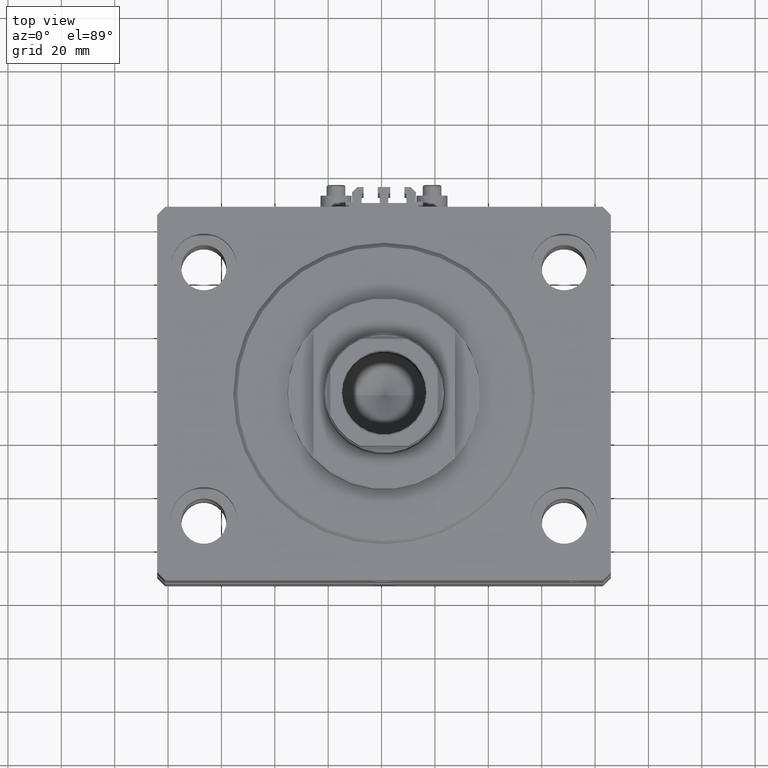
[diagram: clean part render]
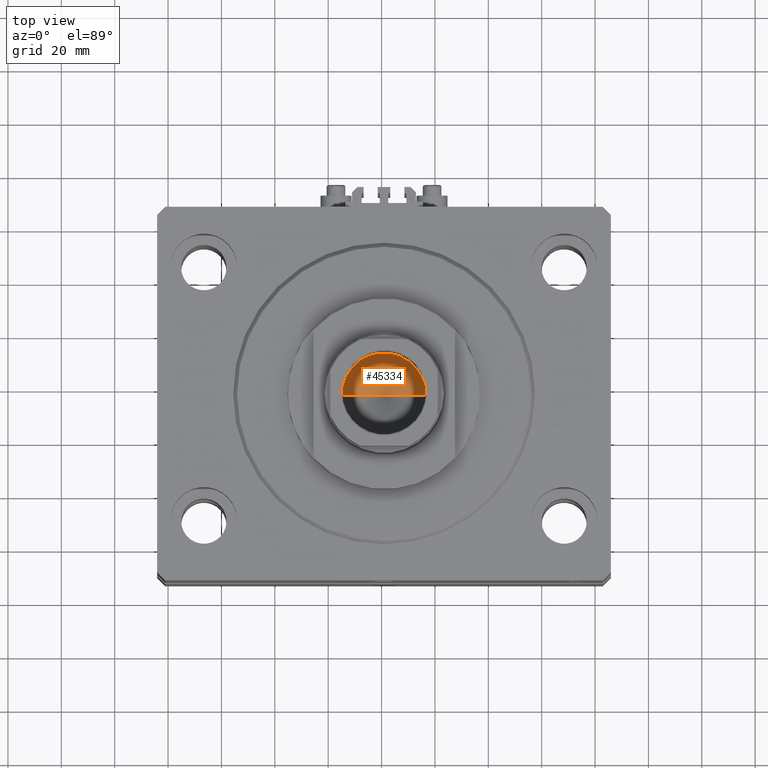
[diagram: same view with one face highlighted and labeled with its STEP entity id]
A machine part, top view. The second image highlights one B-rep face of the part: STEP entity #45334.
In plain terms, the highlighted conical surface has half-angle 59 deg.
Its self-contained STEP definition (entity closure, byte-faithful):
#3615 = FACE_OUTER_BOUND ( 'NONE', #41633, .T. ) ;
#5982 = DIRECTION ( 'NONE',  ( -0.000000000000000000, -0.000000000000000000, 1.000000000000000000 ) ) ;
#6333 = CARTESIAN_POINT ( 'NONE',  ( -15.74999999999998934, 1.928818708657080161E-15, 71.10000000000002274 ) ) ;
#6750 = VERTEX_POINT ( 'NONE', #11647 ) ;
#7201 = LINE ( 'NONE', #26030, #34961 ) ;
#7923 = DIRECTION ( 'NONE',  ( 0.8571673007021118895, 0.000000000000000000, 0.5150380749100549327 ) ) ;
#8691 = CIRCLE ( 'NONE', #34459, 15.74999999999998934 ) ;
#10146 = DIRECTION ( 'NONE',  ( 1.000000000000000000, 0.000000000000000000, 0.000000000000000000 ) ) ;
#10717 = VECTOR ( 'NONE', #33474, 1000.000000000000000 ) ;
#11647 = CARTESIAN_POINT ( 'NONE',  ( -15.74999999999998934, 1.928818708657080161E-15, 71.10000000000002274 ) ) ;
#13101 = CARTESIAN_POINT ( 'NONE',  ( 0.000000000000000000, 0.000000000000000000, 71.10000000000002274 ) ) ;
#14160 = DIRECTION ( 'NONE',  ( 1.000000000000000000, 0.000000000000000000, 0.000000000000000000 ) ) ;
#15146 = ORIENTED_EDGE ( 'NONE', *, *, #20212, .T. ) ;
#18077 = CARTESIAN_POINT ( 'NONE',  ( 0.000000000000000000, 0.000000000000000000, 71.10000000000002274 ) ) ;
#18175 = VERTEX_POINT ( 'NONE', #38592 ) ;
#18556 = LINE ( 'NONE', #6333, #10717 ) ;
#18700 = EDGE_CURVE ( 'NONE', #18175, #6750, #18556, .T. ) ;
#19568 = VERTEX_POINT ( 'NONE', #38241 ) ;
#20212 = EDGE_CURVE ( 'NONE', #18175, #19568, #7201, .T. ) ;
#26030 = CARTESIAN_POINT ( 'NONE',  ( 15.74999999999998934, 0.000000000000000000, 71.10000000000002274 ) ) ;
#28933 = AXIS2_PLACEMENT_3D ( 'NONE', #18077, #33456, #14160 ) ;
#32094 = EDGE_CURVE ( 'NONE', #19568, #6750, #8691, .T. ) ;
#33456 = DIRECTION ( 'NONE',  ( -0.000000000000000000, -0.000000000000000000, 1.000000000000000000 ) ) ;
#33474 = DIRECTION ( 'NONE',  ( -0.8571673007021118895, 1.049727191138618079E-16, 0.5150380749100549327 ) ) ;
#33608 = CONICAL_SURFACE ( 'NONE', #28933, 15.74999999999998934, 1.029744258676653645 ) ;
#34459 = AXIS2_PLACEMENT_3D ( 'NONE', #13101, #5982, #10146 ) ;
#34961 = VECTOR ( 'NONE', #7923, 1000.000000000000000 ) ;
#38241 = CARTESIAN_POINT ( 'NONE',  ( 15.74999999999998934, 0.000000000000000000, 71.10000000000002274 ) ) ;
#38592 = CARTESIAN_POINT ( 'NONE',  ( -1.480675244360640996E-14, 0.000000000000000000, 61.63644525031594412 ) ) ;
#39093 = ORIENTED_EDGE ( 'NONE', *, *, #18700, .F. ) ;
#41633 = EDGE_LOOP ( 'NONE', ( #39093, #15146, #44331 ) ) ;
#44331 = ORIENTED_EDGE ( 'NONE', *, *, #32094, .T. ) ;
#45334 = ADVANCED_FACE ( 'NONE', ( #3615 ), #33608, .F. ) ;